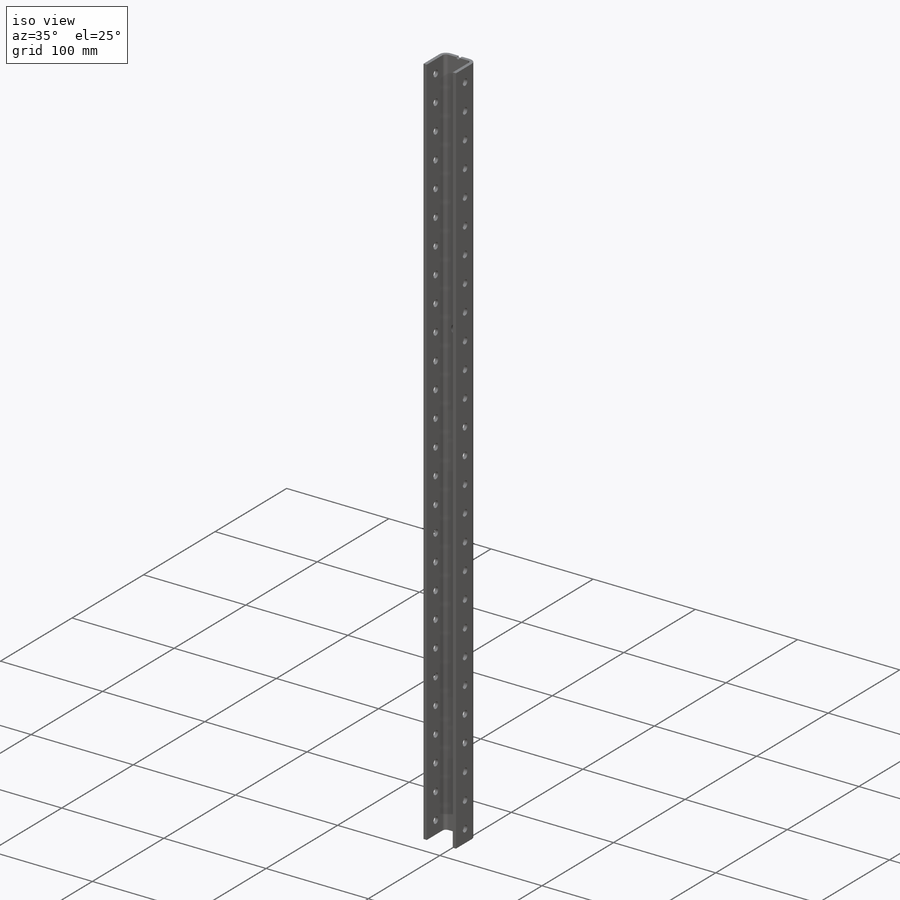
[diagram: iso view]
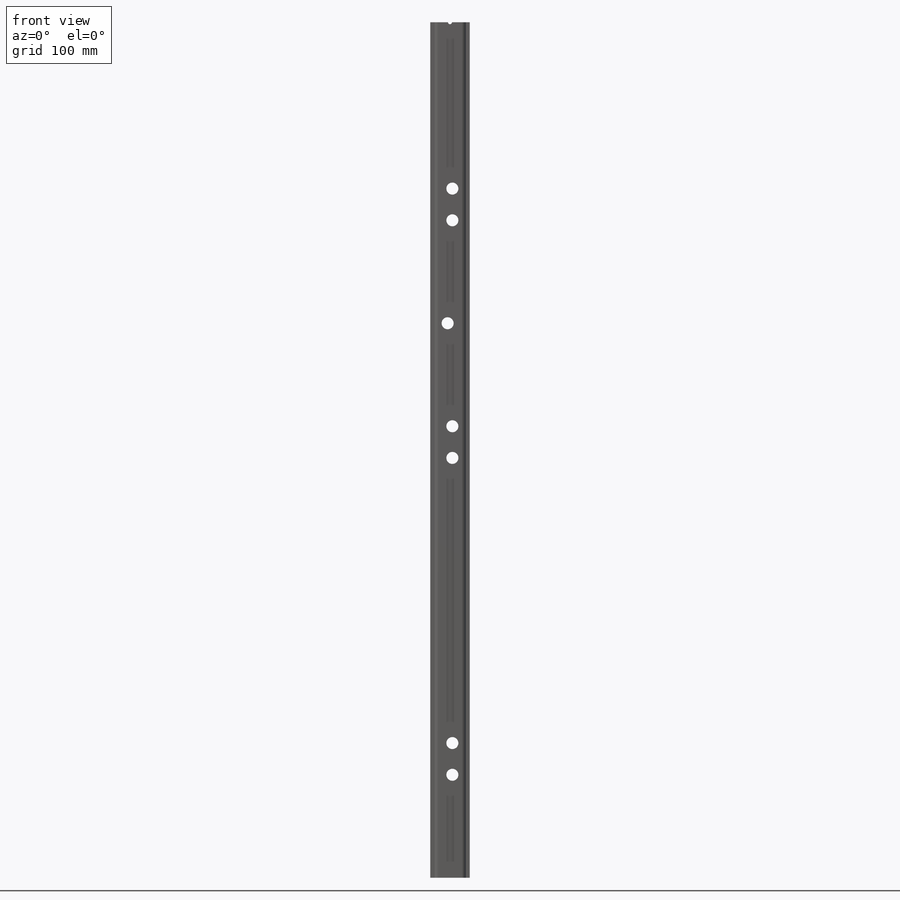
[diagram: front view]
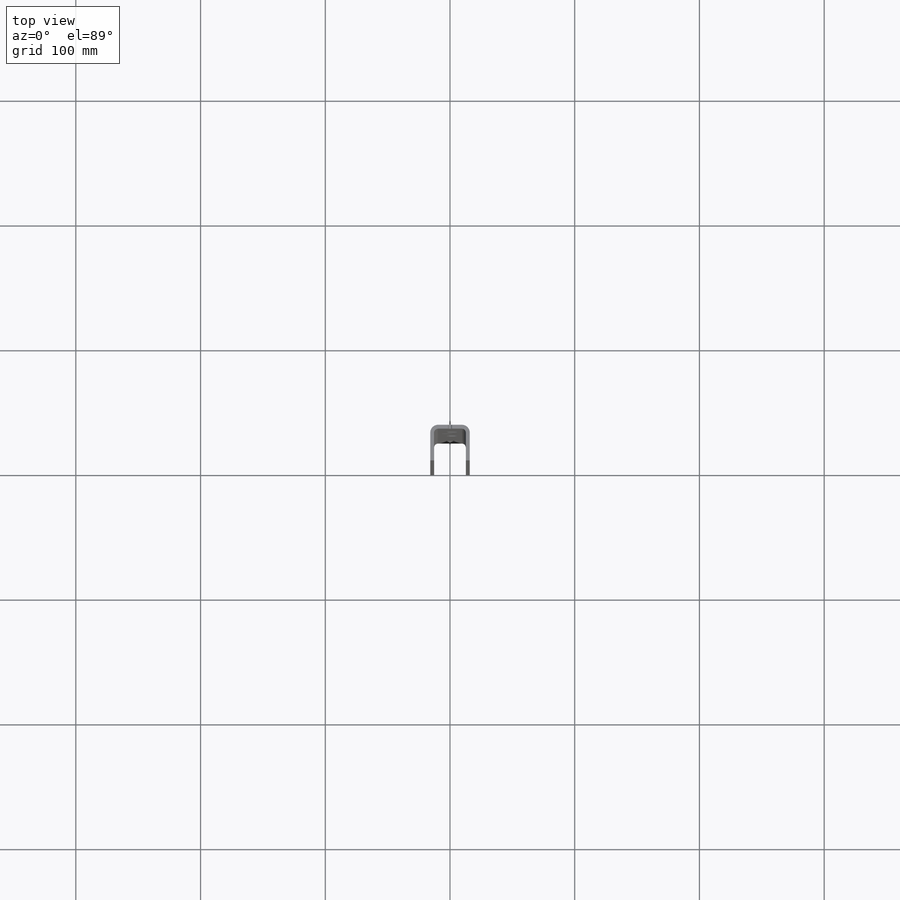
[diagram: top view]
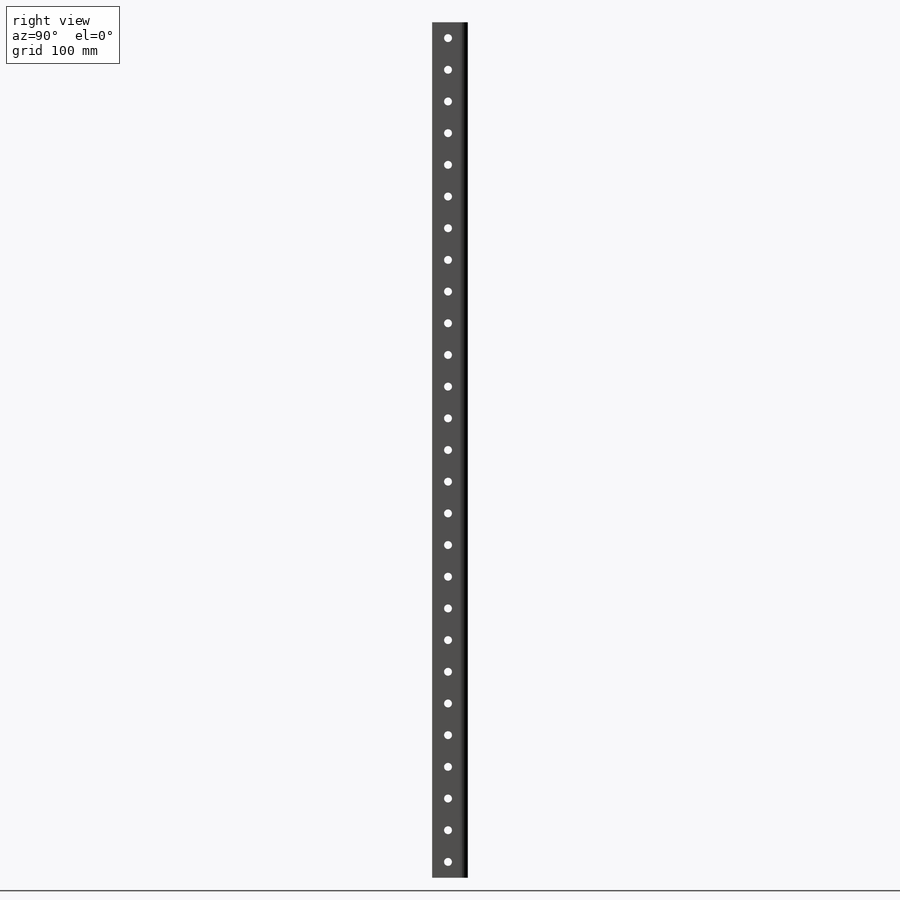
[diagram: right view]
SOLIDWORKS PART (.sldprt)
format: sldprt  version: not decoded by parser v0  size: 404,992 bytes
history: native  units: mm
features: sketch x5, cut_extrude x2, material x1, plane x1, extrude x1, hole x1, pattern_linear x1 (+10 scaffold rows collapsed)
feature tree (22):
  scaffold x10  (default folders/planes/origin — collapsed)
  material  "5052-O"
  plane  "Rithe Plane"
  sketch  "Sketch1"  dims[D5=3.175mm D6=6.35mm D1=31.75mm D2=25.4mm D3=28.575mm D4=25.4mm]
  extrude  "Extrude1"  Depth=685.8mm
  sketch  "Sketch2"  dims[c1.D1=~3.17516mm c1.D2=9.652mm c1.D6=9.65mm c1.D11=9.65mm c1.D14=9.65mm c1.D10=9.652mm c1.D8=9.652mm c2.D6=9.652mm c2.D3=1.905mm c2.D4=82.55mm c2.D5=25.4mm c2.D7=50.8mm c2.D8=254.0mm c2.D9=1.905mm c2.D10=439.67mm c2.D11=~928.027285mm c2.D12=82.55mm c2.D13=25.4mm c2.D15=24.13mm c2.D16=228.6mm c2.D17=~88.652948mm c3.D6=114.3mm c3.D8=82.55mm c3.D10=57.15mm c3.D4=133.35mm c4.D10=25.4mm c4.D8=82.55mm c4.D6=82.55mm]
  cut_extrude  "Extrude2"  Depth=25mm
  hole  "1/4 (0.25) Diameter Hole1"  Diameter=6.35mm Depth=31.75mm
  sketch  "Sketch4"  dims[D1=12.7mm D2=12.7mm]
  sketch  "Sketch3"  dims[hole-wizard template sketch: 60 standard entries collapsed; hole parameters kept: c18.Thru Hole Depth=31.75mm]
  pattern_linear  "LPattern1"  Count1=27 Count2=1 Spacing1=25.4mm Spacing2=2.54mm
  sketch  "Sketch5"  dims[D1=50.8mm]
  cut_extrude  "Extrude3"  [1 undecoded]
decode coverage: 9 of 10 modeling features carry decoded parameters
note: ~ marks probable driven/reference dimensions
note: 1 parameter value undecoded
note: suppression state not decoded; provenance and decode notes live in map.json
